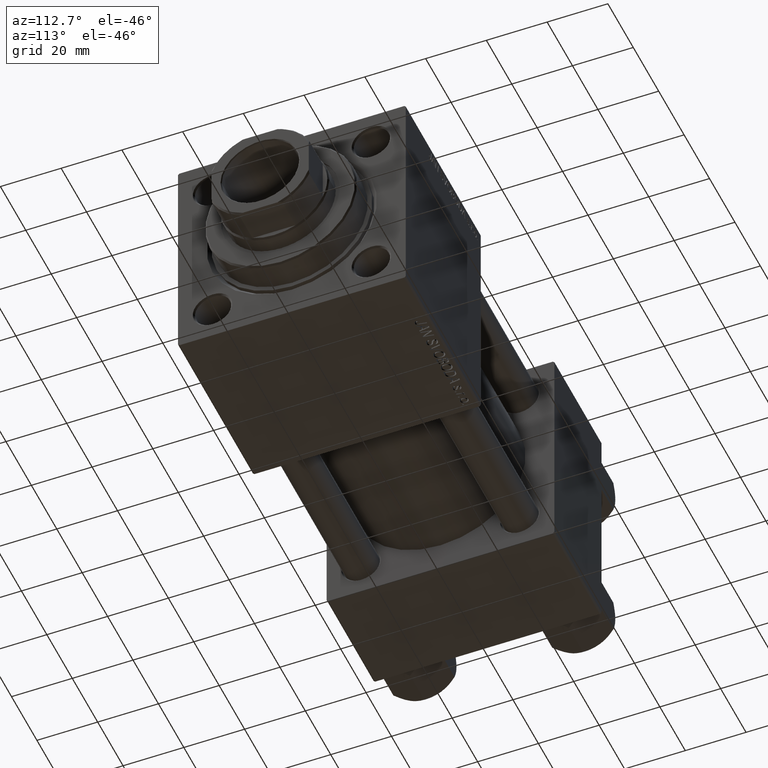
[diagram: clean part render]
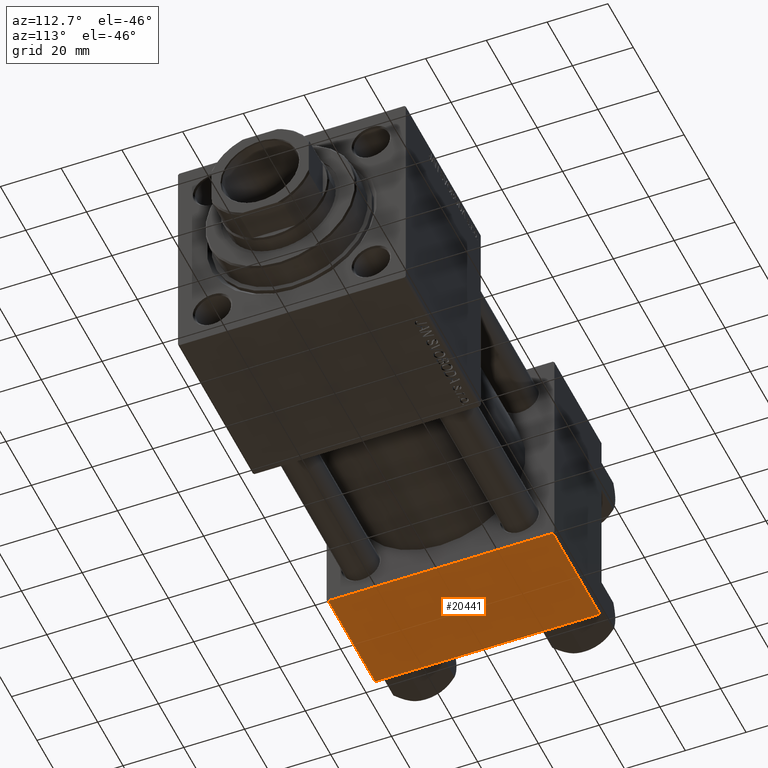
[diagram: same view with one face highlighted and labeled with its STEP entity id]
A machine part, auxiliary view. The second image highlights one B-rep face of the part: STEP entity #20441.
In plain terms, the highlighted planar face has unit normal (0, 0, -1).
Its self-contained STEP definition (entity closure, byte-faithful):
#371 = VECTOR ( 'NONE', #46415, 1000.000000000000000 ) ;
#854 = LINE ( 'NONE', #4659, #40378 ) ;
#3785 = DIRECTION ( 'NONE',  ( 1.000000000000000000, 0.000000000000000000, 0.000000000000000000 ) ) ;
#3964 = DIRECTION ( 'NONE',  ( 0.000000000000000000, -1.000000000000000000, -9.251858538542972814E-17 ) ) ;
#4659 = CARTESIAN_POINT ( 'NONE',  ( 0.000000000000000000, 37.49999999999999289, -37.50000000000000000 ) ) ;
#6383 = VERTEX_POINT ( 'NONE', #46824 ) ;
#7323 = CARTESIAN_POINT ( 'NONE',  ( 37.00000000000000000, 36.99999999999997868, -37.50000000000000000 ) ) ;
#7774 = CARTESIAN_POINT ( 'NONE',  ( 37.00000000000000000, -37.00000000000002132, -37.50000000000000711 ) ) ;
#8039 = DIRECTION ( 'NONE',  ( 0.000000000000000000, 9.251858538542972814E-17, -1.000000000000000000 ) ) ;
#9998 = VERTEX_POINT ( 'NONE', #7774 ) ;
#10227 = VECTOR ( 'NONE', #3964, 1000.000000000000000 ) ;
#15451 = LINE ( 'NONE', #30943, #371 ) ;
#18036 = ORIENTED_EDGE ( 'NONE', *, *, #44887, .T. ) ;
#19198 = EDGE_CURVE ( 'NONE', #36286, #9998, #34943, .T. ) ;
#19459 = CARTESIAN_POINT ( 'NONE',  ( 37.00000000000000000, 37.49999999999999289, -37.50000000000000000 ) ) ;
#20232 = PLANE ( 'NONE',  #26836 ) ;
#20441 = ADVANCED_FACE ( 'NONE', ( #43830 ), #20232, .T. ) ;
#24309 = VERTEX_POINT ( 'NONE', #48192 ) ;
#26329 = EDGE_LOOP ( 'NONE', ( #48200, #18036, #47749, #34485 ) ) ;
#26836 = AXIS2_PLACEMENT_3D ( 'NONE', #40031, #8039, #35218 ) ;
#26900 = LINE ( 'NONE', #7323, #28342 ) ;
#28342 = VECTOR ( 'NONE', #3785, 1000.000000000000000 ) ;
#30009 = EDGE_CURVE ( 'NONE', #9998, #24309, #15451, .T. ) ;
#30943 = CARTESIAN_POINT ( 'NONE',  ( 0.000000000000000000, -37.00000000000002132, -37.50000000000000711 ) ) ;
#34485 = ORIENTED_EDGE ( 'NONE', *, *, #30009, .T. ) ;
#34943 = LINE ( 'NONE', #19459, #10227 ) ;
#35218 = DIRECTION ( 'NONE',  ( 0.000000000000000000, 1.000000000000000000, 9.251858538542972814E-17 ) ) ;
#36286 = VERTEX_POINT ( 'NONE', #42725 ) ;
#40031 = CARTESIAN_POINT ( 'NONE',  ( 37.00000000000000000, 37.49999999999999289, -37.50000000000000000 ) ) ;
#40378 = VECTOR ( 'NONE', #42757, 1000.000000000000000 ) ;
#41457 = EDGE_CURVE ( 'NONE', #6383, #24309, #854, .T. ) ;
#42725 = CARTESIAN_POINT ( 'NONE',  ( 37.00000000000000000, 36.99999999999997868, -37.50000000000000000 ) ) ;
#42757 = DIRECTION ( 'NONE',  ( 0.000000000000000000, -1.000000000000000000, -9.251858538542972814E-17 ) ) ;
#43830 = FACE_OUTER_BOUND ( 'NONE', #26329, .T. ) ;
#44887 = EDGE_CURVE ( 'NONE', #6383, #36286, #26900, .T. ) ;
#46415 = DIRECTION ( 'NONE',  ( -1.000000000000000000, 0.000000000000000000, 0.000000000000000000 ) ) ;
#46824 = CARTESIAN_POINT ( 'NONE',  ( 0.000000000000000000, 36.99999999999997868, -37.50000000000000000 ) ) ;
#47749 = ORIENTED_EDGE ( 'NONE', *, *, #19198, .T. ) ;
#48192 = CARTESIAN_POINT ( 'NONE',  ( 0.000000000000000000, -37.00000000000002132, -37.50000000000000711 ) ) ;
#48200 = ORIENTED_EDGE ( 'NONE', *, *, #41457, .F. ) ;